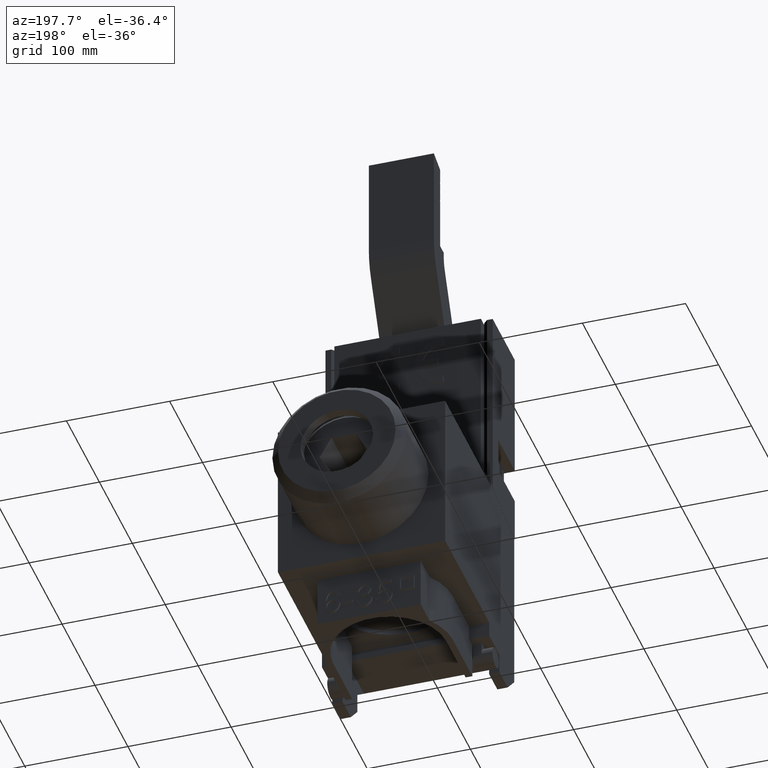
[diagram: clean part render]
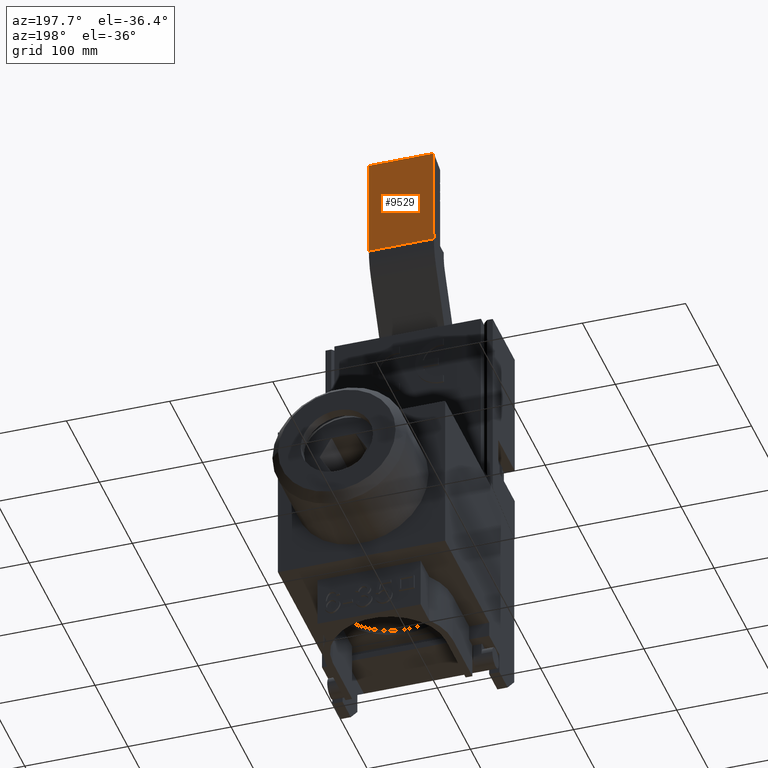
[diagram: same view with one face highlighted and labeled with its STEP entity id]
A machine part, auxiliary view. The second image highlights one B-rep face of the part: STEP entity #9529.
In plain terms, the highlighted planar face has unit normal (0, 1, 0).
Its self-contained STEP definition (entity closure, byte-faithful):
#1450=CARTESIAN_POINT('',(-202.09263777450505,117.56537027460963,497.099999999994));
#1451=VERTEX_POINT('',#1450);
#1458=CARTESIAN_POINT('',(-202.09263777450519,117.56537027460968,492.26407864998168));
#1459=VERTEX_POINT('',#1458);
#1460=CARTESIAN_POINT('',(-202.09263777450505,117.56537027460963,492.26407864998168));
#1461=DIRECTION('',(0.0,0.0,1.0));
#1462=VECTOR('',#1461,4.835921350012313);
#1463=LINE('',#1460,#1462);
#1464=EDGE_CURVE('',#1459,#1451,#1463,.T.);
#8418=CARTESIAN_POINT('',(-202.09263777450505,117.56537027460938,590.099999999994));
#8419=VERTEX_POINT('',#8418);
#8426=CARTESIAN_POINT('',(-202.09263777450505,117.56537027460963,497.099999999994));
#8427=DIRECTION('',(0.0,0.0,1.0));
#8428=VECTOR('',#8427,93.0);
#8429=LINE('',#8426,#8428);
#8430=EDGE_CURVE('',#1451,#8419,#8429,.T.);
#8797=CARTESIAN_POINT('',(-139.09263777450508,117.56537027460968,497.099999999994));
#8798=VERTEX_POINT('',#8797);
#8805=CARTESIAN_POINT('',(-139.09263777450508,117.56537027460945,590.099999999994));
#8806=VERTEX_POINT('',#8805);
#8807=CARTESIAN_POINT('',(-139.09263777450514,117.56537027460945,590.099999999994));
#8808=DIRECTION('',(0.0,0.0,-1.0));
#8809=VECTOR('',#8808,93.000000000000057);
#8810=LINE('',#8807,#8809);
#8811=EDGE_CURVE('',#8806,#8798,#8810,.T.);
#9410=CARTESIAN_POINT('',(-139.09263777450516,117.56537027460976,492.26407864998168));
#9411=VERTEX_POINT('',#9410);
#9419=CARTESIAN_POINT('',(-139.09263777450516,117.56537027460968,497.099999999994));
#9420=DIRECTION('',(0.0,0.0,-1.0));
#9421=VECTOR('',#9420,4.835921350012313);
#9422=LINE('',#9419,#9421);
#9423=EDGE_CURVE('',#8798,#9411,#9422,.T.);
#9489=CARTESIAN_POINT('',(-202.09263777450505,117.56537027460939,590.099999999994));
#9490=DIRECTION('',(1.0,0.0,0.0));
#9491=VECTOR('',#9490,62.999999999999972);
#9492=LINE('',#9489,#9491);
#9493=EDGE_CURVE('',#8419,#8806,#9492,.T.);
#9505=CARTESIAN_POINT('',(-139.09263777450516,117.56537027460972,492.26407864998168));
#9506=DIRECTION('',(-1.0,0.0,0.0));
#9507=VECTOR('',#9506,63.000000000000028);
#9508=LINE('',#9505,#9507);
#9509=EDGE_CURVE('',#9411,#1459,#9508,.T.);
#9516=CARTESIAN_POINT('',(-225.59263777450519,117.56537027460938,590.099999999994));
#9517=DIRECTION('',(0.0,1.0,0.0));
#9518=DIRECTION('',(0.0,0.0,1.0));
#9519=AXIS2_PLACEMENT_3D('',#9516,#9517,#9518);
#9520=PLANE('',#9519);
#9521=ORIENTED_EDGE('',*,*,#1464,.T.);
#9522=ORIENTED_EDGE('',*,*,#8430,.T.);
#9523=ORIENTED_EDGE('',*,*,#9493,.T.);
#9524=ORIENTED_EDGE('',*,*,#8811,.T.);
#9525=ORIENTED_EDGE('',*,*,#9423,.T.);
#9526=ORIENTED_EDGE('',*,*,#9509,.T.);
#9527=EDGE_LOOP('',(#9521,#9522,#9523,#9524,#9525,#9526));
#9528=FACE_OUTER_BOUND('',#9527,.T.);
#9529=ADVANCED_FACE('',(#9528),#9520,.T.);